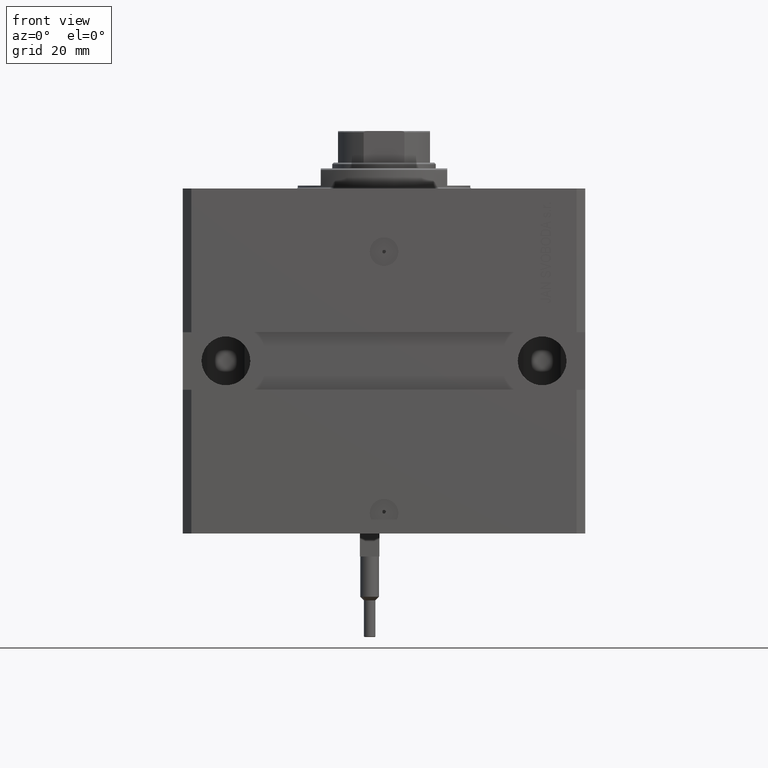
[diagram: clean part render]
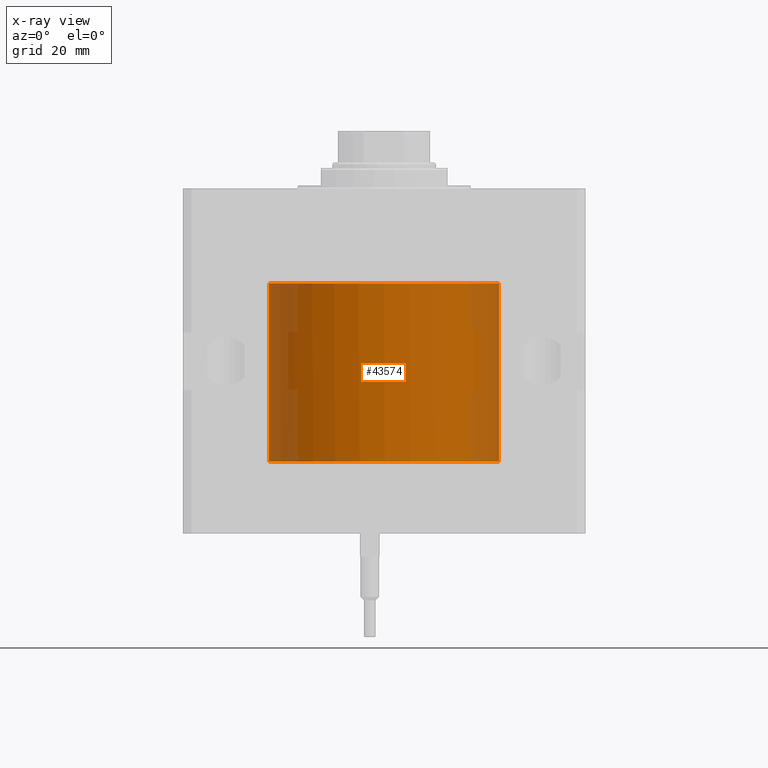
[diagram: x-ray — body ghosted, one internal face saturated and labeled with its STEP entity id]
A machine part, front view, then the same camera in x-ray: the body is ghosted and one INTERNAL B-rep face — a face not visible from any outside direction — is saturated and labeled: STEP entity #43574.
In plain terms, the highlighted cylindrical surface (partial cylindrical patch) has radius 40 mm, axis along (0, 0, 1).
Its self-contained STEP definition (entity closure, byte-faithful):
#405 = CARTESIAN_POINT ( 'NONE',  ( -39.99883003604586662, -0.3269459501876756935, -34.44289881627523187 ) ) ;
#645 = CARTESIAN_POINT ( 'NONE',  ( -39.99628864179531007, -0.5569521649436425248, -35.32709363231368371 ) ) ;
#717 = DIRECTION ( 'NONE',  ( 0.000000000000000000, 0.000000000000000000, 1.000000000000000000 ) ) ;
#876 = CARTESIAN_POINT ( 'NONE',  ( -39.99628006738579700, -0.5575649541242133633, -34.67384558076868473 ) ) ;
#1334 = DIRECTION ( 'NONE',  ( -0.000000000000000000, -0.000000000000000000, 1.000000000000000000 ) ) ;
#1945 = CARTESIAN_POINT ( 'NONE',  ( -39.99511688944041055, -0.6249999999999984457, -94.91738953319639904 ) ) ;
#3835 = VECTOR ( 'NONE', #29281, 1000.000000000000000 ) ;
#4000 = DIRECTION ( 'NONE',  ( 1.000000000000000000, 0.000000000000000000, 0.000000000000000000 ) ) ;
#4412 = CARTESIAN_POINT ( 'NONE',  ( -39.99511905822721047, -0.6248612145393632744, -35.16536149642366382 ) ) ;
#4633 = ORIENTED_EDGE ( 'NONE', *, *, #26453, .T. ) ;
#6968 = CARTESIAN_POINT ( 'NONE',  ( -40.00000000000000000, 4.898587196589413026E-15, -95.00000000000000000 ) ) ;
#7297 = CARTESIAN_POINT ( 'NONE',  ( -40.00000000000000000, 4.898587196589413026E-15, -33.00000000000000000 ) ) ;
#7609 = DIRECTION ( 'NONE',  ( -0.000000000000000000, -0.000000000000000000, 1.000000000000000000 ) ) ;
#7839 = AXIS2_PLACEMENT_3D ( 'NONE', #34821, #717, #4000 ) ;
#8274 = CARTESIAN_POINT ( 'NONE',  ( 40.00000000000000000, 0.000000000000000000, -95.00000000000000000 ) ) ;
#8982 = B_SPLINE_CURVE_WITH_KNOTS ( 'NONE', 3,
 ( #44577, #1945, #33541, #14470, #33292, #21491, #21738, #44824 ),
 .UNSPECIFIED., .F., .F.,
 ( 4, 2, 2, 4 ),
 ( 0.000000000000000000, 0.0002443135086022654636, 0.0004886270172045309272, 0.0009772540344090913447 ),
 .UNSPECIFIED. ) ;
#10861 = VERTEX_POINT ( 'NONE', #13666 ) ;
#12297 = AXIS2_PLACEMENT_3D ( 'NONE', #26028, #25273, #33305 ) ;
#12605 = ORIENTED_EDGE ( 'NONE', *, *, #27118, .T. ) ;
#13666 = CARTESIAN_POINT ( 'NONE',  ( -40.00000000000012790, 9.803334896741571174E-13, -94.37499999999168665 ) ) ;
#14470 = CARTESIAN_POINT ( 'NONE',  ( -39.99628640843519634, -0.5459479463223861906, -94.68490773269725480 ) ) ;
#14748 = CARTESIAN_POINT ( 'NONE',  ( -40.00000000000000000, 1.067655236296513633E-14, -34.37500000000000000 ) ) ;
#15518 = DIRECTION ( 'NONE',  ( 0.000000000000000000, 0.000000000000000000, 1.000000000000000000 ) ) ;
#15915 = CARTESIAN_POINT ( 'NONE',  ( -39.99883528402092026, -0.3263077590334985123, -35.55741295708847360 ) ) ;
#18647 = VERTEX_POINT ( 'NONE', #14748 ) ;
#21157 = VERTEX_POINT ( 'NONE', #22531 ) ;
#21232 = CARTESIAN_POINT ( 'NONE',  ( 40.00000000000000000, 0.000000000000000000, -33.00000000000000000 ) ) ;
#21491 = CARTESIAN_POINT ( 'NONE',  ( -39.99883487683936778, -0.3263849897136422706, -94.44258365357569573 ) ) ;
#21738 = CARTESIAN_POINT ( 'NONE',  ( -39.99999999999999289, -0.1631018314110818934, -94.37499999999961631 ) ) ;
#22531 = CARTESIAN_POINT ( 'NONE',  ( -40.00000000000004974, 3.462873814982701370E-13, -35.62500000000321165 ) ) ;
#22595 = B_SPLINE_CURVE_WITH_KNOTS ( 'NONE', 3,
 ( #38746, #30742, #15915, #645, #4412, #46278, #876, #405, #23695, #34505 ),
 .UNSPECIFIED., .F., .F.,
 ( 4, 2, 2, 2, 4 ),
 ( 0.001954065476890838940, 0.002442471498614544496, 0.002930877520338250053, 0.003419283542061955609, 0.003907689563785661166 ),
 .UNSPECIFIED. ) ;
#23695 = CARTESIAN_POINT ( 'NONE',  ( -39.99999999999999289, -0.1651462076627460140, -34.37500000000000711 ) ) ;
#23905 = ORIENTED_EDGE ( 'NONE', *, *, #29376, .F. ) ;
#25168 = CIRCLE ( 'NONE', #28356, 40.00000000000000000 ) ;
#25273 = DIRECTION ( 'NONE',  ( -0.000000000000000000, -0.000000000000000000, 1.000000000000000000 ) ) ;
#26028 = CARTESIAN_POINT ( 'NONE',  ( 0.000000000000000000, 0.000000000000000000, -95.00000000000000000 ) ) ;
#26453 = EDGE_CURVE ( 'NONE', #18647, #34700, #41542, .T. ) ;
#26654 = CARTESIAN_POINT ( 'NONE',  ( -40.00000000000000000, 4.898587196589413026E-15, -95.00000000000000000 ) ) ;
#27118 = EDGE_CURVE ( 'NONE', #34700, #27195, #29455, .T. ) ;
#27195 = VERTEX_POINT ( 'NONE', #21232 ) ;
#27276 = ORIENTED_EDGE ( 'NONE', *, *, #47199, .T. ) ;
#27991 = ORIENTED_EDGE ( 'NONE', *, *, #45467, .T. ) ;
#28356 = AXIS2_PLACEMENT_3D ( 'NONE', #34095, #15518, #34340 ) ;
#29030 = CYLINDRICAL_SURFACE ( 'NONE', #12297, 40.00000000000000000 ) ;
#29281 = DIRECTION ( 'NONE',  ( -0.000000000000000000, -0.000000000000000000, 1.000000000000000000 ) ) ;
#29376 = EDGE_CURVE ( 'NONE', #31420, #27195, #43205, .T. ) ;
#29455 = CIRCLE ( 'NONE', #7839, 40.00000000000000000 ) ;
#30742 = CARTESIAN_POINT ( 'NONE',  ( -40.00000000000000000, -0.1631285566730246439, -35.62500000000014211 ) ) ;
#31420 = VERTEX_POINT ( 'NONE', #8274 ) ;
#31607 = VECTOR ( 'NONE', #7609, 1000.000000000000000 ) ;
#33292 = CARTESIAN_POINT ( 'NONE',  ( -39.99692294640741608, -0.4994842196615993934, -94.61555975691676679 ) ) ;
#33305 = DIRECTION ( 'NONE',  ( 1.000000000000000000, 0.000000000000000000, 0.000000000000000000 ) ) ;
#33336 = ORIENTED_EDGE ( 'NONE', *, *, #38498, .T. ) ;
#33541 = CARTESIAN_POINT ( 'NONE',  ( -39.99538013934520109, -0.6087307573489142420, -94.83632604952211409 ) ) ;
#34095 = CARTESIAN_POINT ( 'NONE',  ( 0.000000000000000000, 0.000000000000000000, -95.00000000000000000 ) ) ;
#34340 = DIRECTION ( 'NONE',  ( 1.000000000000000000, 0.000000000000000000, 0.000000000000000000 ) ) ;
#34505 = CARTESIAN_POINT ( 'NONE',  ( -40.00000000000000000, 1.067655236296513633E-14, -34.37500000000000000 ) ) ;
#34700 = VERTEX_POINT ( 'NONE', #7297 ) ;
#34821 = CARTESIAN_POINT ( 'NONE',  ( 0.000000000000000000, 0.000000000000000000, -33.00000000000000000 ) ) ;
#35668 = CARTESIAN_POINT ( 'NONE',  ( 40.00000000000000000, 0.000000000000000000, -95.00000000000000000 ) ) ;
#36849 = CARTESIAN_POINT ( 'NONE',  ( -39.99511688944039633, -0.6249999999999983347, -95.00000000000000000 ) ) ;
#38260 = VERTEX_POINT ( 'NONE', #36849 ) ;
#38498 = EDGE_CURVE ( 'NONE', #38260, #10861, #8982, .T. ) ;
#38746 = CARTESIAN_POINT ( 'NONE',  ( -40.00000000000004974, 3.462873814982701370E-13, -35.62500000000321165 ) ) ;
#39372 = EDGE_CURVE ( 'NONE', #38260, #31420, #25168, .T. ) ;
#41542 = LINE ( 'NONE', #6968, #3835 ) ;
#43205 = LINE ( 'NONE', #35668, #45629 ) ;
#43574 = ADVANCED_FACE ( 'NONE', ( #45084 ), #29030, .F. ) ;
#44577 = CARTESIAN_POINT ( 'NONE',  ( -39.99511688944039633, -0.6249999999999983347, -95.00000000000000000 ) ) ;
#44824 = CARTESIAN_POINT ( 'NONE',  ( -40.00000000000012790, 9.803334896741571174E-13, -94.37499999999168665 ) ) ;
#45035 = ORIENTED_EDGE ( 'NONE', *, *, #39372, .F. ) ;
#45084 = FACE_OUTER_BOUND ( 'NONE', #47584, .T. ) ;
#45225 = LINE ( 'NONE', #26654, #31607 ) ;
#45467 = EDGE_CURVE ( 'NONE', #10861, #21157, #45225, .T. ) ;
#45629 = VECTOR ( 'NONE', #1334, 1000.000000000000000 ) ;
#46278 = CARTESIAN_POINT ( 'NONE',  ( -39.99511472755523300, -0.6251383438089350708, -34.83568927900195433 ) ) ;
#47199 = EDGE_CURVE ( 'NONE', #21157, #18647, #22595, .T. ) ;
#47584 = EDGE_LOOP ( 'NONE', ( #33336, #27991, #27276, #4633, #12605, #23905, #45035 ) ) ;